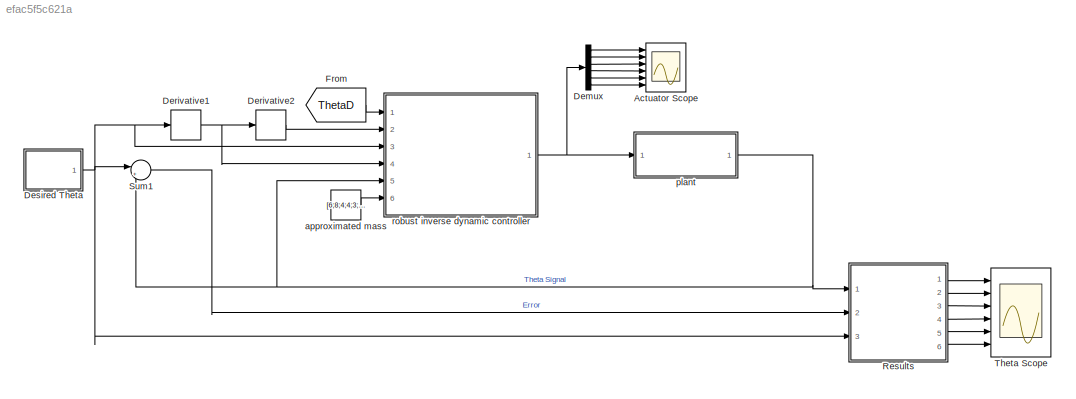
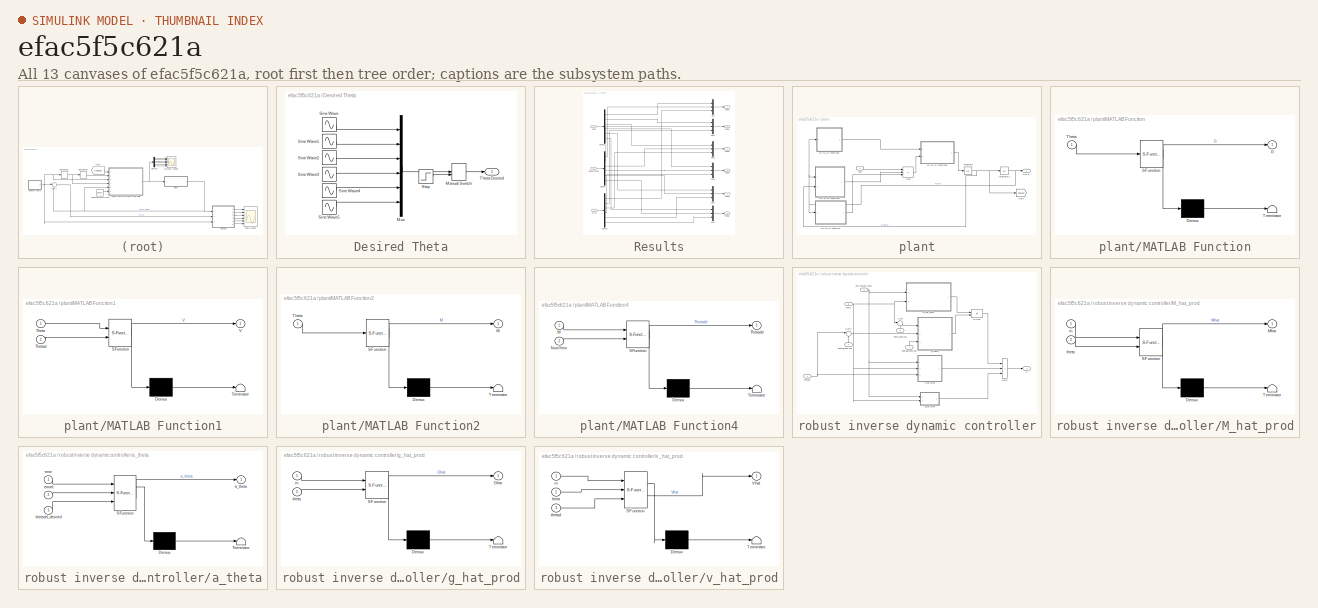
[diagram: thumbnail index - all 13 canvases of the model, root first then tree order]
MODEL slx_efac5f5c621a
KIND model
CONFIG AbsTol = auto
CONFIG EnableMultiTasking = off
CONFIG FixedStep = auto
CONFIG MaxStep = auto
CONFIG MinStep = auto
CONFIG RelTol = 1e-3
CONFIG SampleTimeConstraint = Unconstrained
CONFIG SolverName = VariableStepAuto
CONFIG StartTime = 0.0
CONFIG StopTime = 10
BLOCK [Scope] Actuator Scope
  Floating = off
  NumInputPorts = 6
  Ports = [6]
  ScopeSpecificationString = Simulink.scopes.TimeScopeBlockCfg('CurrentConfiguration', extmgr.ConfigurationSet(extmgr.Configuration('Core','General UI',true),extmgr.Configuration('Core','Source UI',true),extmgr.Configuration('Sources','WiredSimulink',true,'DataLoggingVariableName','ScopeData1'),extmgr.Configuration('Visuals','Time Domain',true,'SerializedDisplays',{struct('MinYLimReal','-355767212215.15454','MaxYLimReal','485...<+5018ch>
BLOCK [Demux] Demux
  Outputs = 6
  Ports = [1, 6]
BLOCK [Derivative] Derivative1
BLOCK [Derivative] Derivative2
BLOCK [SubSystem] Desired Theta
  Ports = [0, 1]
  RequestExecContextInheritance = off
  ShowPortLabels = none
BLOCK [ManualSwitch] Desired Theta/Manual Switch
  CurrentSetting = 0
BLOCK [Mux] Desired Theta/Mux
  DisplayOption = bar
  Inputs = 6
  Ports = [6, 1]
BLOCK [Sin] Desired Theta/Sine Wave
  Ports = [0, 1]
  SampleTime = 0
BLOCK [Sin] Desired Theta/Sine Wave1
  Ports = [0, 1]
  SampleTime = 0
BLOCK [Sin] Desired Theta/Sine Wave2
  Ports = [0, 1]
  SampleTime = 0
BLOCK [Sin] Desired Theta/Sine Wave3
  Amplitude = 0.5
  Bias = 0.5
  Ports = [0, 1]
  SampleTime = 0
BLOCK [Sin] Desired Theta/Sine Wave4
  Amplitude = 0.5
  Bias = 0.5
  Frequency = 2
  Ports = [0, 1]
  SampleTime = 0
BLOCK [Sin] Desired Theta/Sine Wave5
  Amplitude = 0.5
  Bias = 0.5
  Frequency = 0.5
  Ports = [0, 1]
  SampleTime = 0
BLOCK [Step] Desired Theta/Step
  After = [pi/2;pi/2;pi/2;pi/2;pi/2;pi/2];
  Before = [0;0;0;0;0;0];
  SampleTime = 0
  Time = 0
BLOCK [Outport] Desired Theta/Theta Desired
  VectorParamsAs1DForOutWhenUnconnected = off
BLOCK [From] From
  GotoTag = ThetaD
  TagVisibility = global
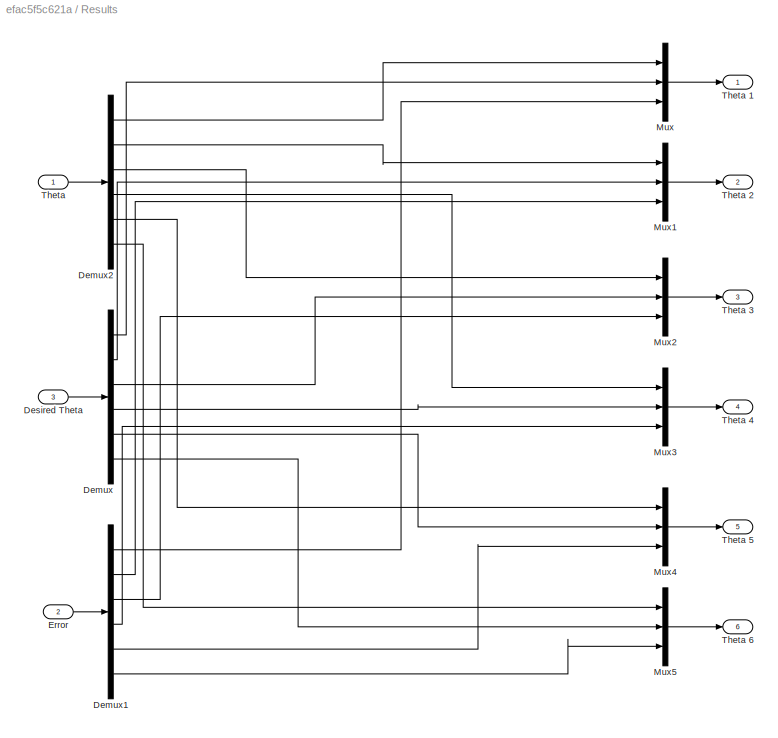
BLOCK [SubSystem] Results
  Ports = [3, 6]
  RequestExecContextInheritance = off
BLOCK [Demux] Results/Demux
  Outputs = 6
  Ports = [1, 6]
BLOCK [Demux] Results/Demux1
  Outputs = 6
  Ports = [1, 6]
BLOCK [Demux] Results/Demux2
  Outputs = 6
  Ports = [1, 6]
BLOCK [Inport] Results/Desired Theta
  Port = 3
BLOCK [Inport] Results/Error
  Port = 2
BLOCK [Mux] Results/Mux
  DisplayOption = bar
  Inputs = 3
  Ports = [3, 1]
BLOCK [Mux] Results/Mux1
  DisplayOption = bar
  Inputs = 3
  Ports = [3, 1]
BLOCK [Mux] Results/Mux2
  DisplayOption = bar
  Inputs = 3
  Ports = [3, 1]
BLOCK [Mux] Results/Mux3
  DisplayOption = bar
  Inputs = 3
  Ports = [3, 1]
BLOCK [Mux] Results/Mux4
  DisplayOption = bar
  Inputs = 3
  Ports = [3, 1]
BLOCK [Mux] Results/Mux5
  DisplayOption = bar
  Inputs = 3
  Ports = [3, 1]
BLOCK [Inport] Results/Theta
BLOCK [Outport] Results/Theta 1
  VectorParamsAs1DForOutWhenUnconnected = off
BLOCK [Outport] Results/Theta 2
  Port = 2
  VectorParamsAs1DForOutWhenUnconnected = off
BLOCK [Outport] Results/Theta 3
  Port = 3
  VectorParamsAs1DForOutWhenUnconnected = off
BLOCK [Outport] Results/Theta 4
  Port = 4
  VectorParamsAs1DForOutWhenUnconnected = off
BLOCK [Outport] Results/Theta 5
  Port = 5
  VectorParamsAs1DForOutWhenUnconnected = off
BLOCK [Outport] Results/Theta 6
  Port = 6
  VectorParamsAs1DForOutWhenUnconnected = off
BLOCK [Sum] Sum1
  Inputs = |+-
  Ports = [2, 1]
BLOCK [Scope] Theta Scope
  Floating = off
  NumInputPorts = 6
  Ports = [6]
  ScopeSpecificationString = Simulink.scopes.TimeScopeBlockCfg('CurrentConfiguration', extmgr.ConfigurationSet(extmgr.Configuration('Core','General UI',true),extmgr.Configuration('Core','Source UI',true),extmgr.Configuration('Sources','WiredSimulink',true),extmgr.Configuration('Visuals','Time Domain',true,'SerializedDisplays',{struct('MinYLimReal','-190.6496','MaxYLimReal','192.22039','YLabelReal','','MinYLimMag',' 0.00000','...<+5182ch>
BLOCK [Constant] approximated mass
  Value = [6;8;4;4;3;3]
BLOCK [SubSystem] plant
  Ports = [1, 1]
  RequestExecContextInheritance = off
BLOCK [Goto] plant/Goto
  GotoTag = ThetaD
  TagVisibility = global
BLOCK [Integrator] plant/Integrator
  InitialCondition = [0;0;0;0;0;0]
  Ports = [1, 1]
BLOCK [Integrator] plant/Integrator1
  InitialCondition = [0;0;0;0;0;0]
  Ports = [1, 1]
BLOCK [SubSystem] plant/MATLAB Function
  ErrorFcn = Stateflow.Translate.translate
  PermitHierarchicalResolution = ExplicitOnly
  Ports = [1, 1]
  RequestExecContextInheritance = off
  SFBlockType = MATLAB Function
  TreatAsAtomicUnit = on
BLOCK [Demux] plant/MATLAB Function/ Demux 
  Outputs = 1
  Ports = [1, 1]
BLOCK [S-Function] plant/MATLAB Function/ SFunction 
  EnableBusSupport = on
  FunctionName = sf_sfun
  PortCounts = [1 2]
  Ports = [1, 2]
  SFcnIsStateOwnerBlock = off
  SFunctionDeploymentMode = off
  Tag = Stateflow S-Function 4
BLOCK [Terminator] plant/MATLAB Function/ Terminator 
BLOCK [Outport] plant/MATLAB Function/G
  VectorParamsAs1DForOutWhenUnconnected = off
BLOCK [Inport] plant/MATLAB Function/Theta
BLOCK [SubSystem] plant/MATLAB Function1
  ErrorFcn = Stateflow.Translate.translate
  PermitHierarchicalResolution = ExplicitOnly
  Ports = [2, 1]
  RequestExecContextInheritance = off
  SFBlockType = MATLAB Function
  TreatAsAtomicUnit = on
BLOCK [Demux] plant/MATLAB Function1/ Demux 
  Outputs = 1
  Ports = [1, 1]
BLOCK [S-Function] plant/MATLAB Function1/ SFunction 
  EnableBusSupport = on
  FunctionName = sf_sfun
  PortCounts = [2 2]
  Ports = [2, 2]
  SFcnIsStateOwnerBlock = off
  SFunctionDeploymentMode = off
  Tag = Stateflow S-Function 1
BLOCK [Terminator] plant/MATLAB Function1/ Terminator 
BLOCK [Inport] plant/MATLAB Function1/Theta
BLOCK [Inport] plant/MATLAB Function1/Thetad
  Port = 2
BLOCK [Outport] plant/MATLAB Function1/V
  VectorParamsAs1DForOutWhenUnconnected = off
BLOCK [SubSystem] plant/MATLAB Function2
  ErrorFcn = Stateflow.Translate.translate
  PermitHierarchicalResolution = ExplicitOnly
  Ports = [1, 1]
  RequestExecContextInheritance = off
  SFBlockType = MATLAB Function
  TreatAsAtomicUnit = on
BLOCK [Demux] plant/MATLAB Function2/ Demux 
  Outputs = 1
  Ports = [1, 1]
BLOCK [S-Function] plant/MATLAB Function2/ SFunction 
  EnableBusSupport = on
  FunctionName = sf_sfun
  PortCounts = [1 2]
  Ports = [1, 2]
  SFcnIsStateOwnerBlock = off
  SFunctionDeploymentMode = off
  Tag = Stateflow S-Function 3
BLOCK [Terminator] plant/MATLAB Function2/ Terminator 
BLOCK [Outport] plant/MATLAB Function2/M
  VectorParamsAs1DForOutWhenUnconnected = off
BLOCK [Inport] plant/MATLAB Function2/Theta
BLOCK [SubSystem] plant/MATLAB Function4
  ErrorFcn = Stateflow.Translate.translate
  PermitHierarchicalResolution = ExplicitOnly
  Ports = [2, 1]
  RequestExecContextInheritance = off
  SFBlockType = MATLAB Function
  TreatAsAtomicUnit = on
BLOCK [Demux] plant/MATLAB Function4/ Demux 
  Outputs = 1
  Ports = [1, 1]
BLOCK [S-Function] plant/MATLAB Function4/ SFunction 
  EnableBusSupport = on
  FunctionName = sf_sfun
  PortCounts = [2 2]
  Ports = [2, 2]
  SFcnIsStateOwnerBlock = off
  SFunctionDeploymentMode = off
  Tag = Stateflow S-Function 2
BLOCK [Terminator] plant/MATLAB Function4/ Terminator 
BLOCK [Inport] plant/MATLAB Function4/M
BLOCK [Inport] plant/MATLAB Function4/NumTerm
  Port = 2
BLOCK [Outport] plant/MATLAB Function4/Thetadd
  VectorParamsAs1DForOutWhenUnconnected = off
BLOCK [Sum] plant/Sum
  IconShape = rectangular
  Inputs = +--
  Ports = [3, 1]
BLOCK [Outport] plant/THETA
BLOCK [Inport] plant/taw
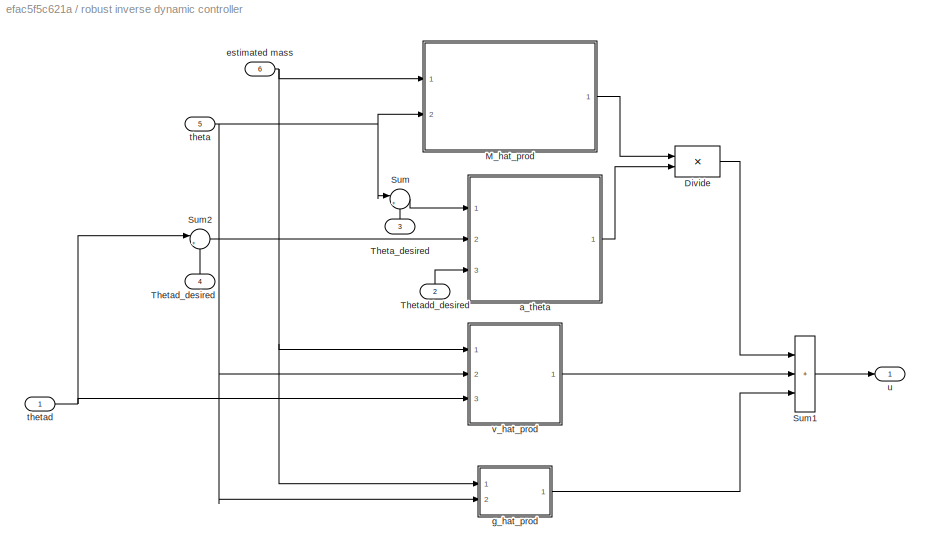
BLOCK [SubSystem] robust inverse dynamic controller
  Ports = [6, 1]
  RequestExecContextInheritance = off
BLOCK [Product] robust inverse dynamic controller/Divide
  Multiplication = Matrix(*)
  Ports = [2, 1]
BLOCK [SubSystem] robust inverse dynamic controller/M_hat_prod
  ErrorFcn = Stateflow.Translate.translate
  PermitHierarchicalResolution = ExplicitOnly
  Ports = [2, 1]
  RequestExecContextInheritance = off
  SFBlockType = MATLAB Function
  TreatAsAtomicUnit = on
BLOCK [Demux] robust inverse dynamic controller/M_hat_prod/ Demux 
  Outputs = 1
  Ports = [1, 1]
BLOCK [S-Function] robust inverse dynamic controller/M_hat_prod/ SFunction 
  EnableBusSupport = on
  FunctionName = sf_sfun
  PortCounts = [2 2]
  Ports = [2, 2]
  SFcnIsStateOwnerBlock = off
  SFunctionDeploymentMode = off
  Tag = Stateflow S-Function 8
BLOCK [Terminator] robust inverse dynamic controller/M_hat_prod/ Terminator 
BLOCK [Outport] robust inverse dynamic controller/M_hat_prod/Mhat
BLOCK [Inport] robust inverse dynamic controller/M_hat_prod/m
BLOCK [Inport] robust inverse dynamic controller/M_hat_prod/theta
  Port = 2
BLOCK [Sum] robust inverse dynamic controller/Sum
  Inputs = |+-
  Ports = [2, 1]
BLOCK [Sum] robust inverse dynamic controller/Sum1
  IconShape = rectangular
  Inputs = +++
  Ports = [3, 1]
BLOCK [Sum] robust inverse dynamic controller/Sum2
  Inputs = |+-
  Ports = [2, 1]
BLOCK [Inport] robust inverse dynamic controller/Theta_desired
  NameLocation = left
  Port = 3
BLOCK [Inport] robust inverse dynamic controller/Thetad_desired
  NameLocation = left
  Port = 4
BLOCK [Inport] robust inverse dynamic controller/Thetadd_desired
  NameLocation = left
  Port = 2
BLOCK [SubSystem] robust inverse dynamic controller/a_theta
  ErrorFcn = Stateflow.Translate.translate
  PermitHierarchicalResolution = ExplicitOnly
  Ports = [3, 1]
  RequestExecContextInheritance = off
  SFBlockType = MATLAB Function
  TreatAsAtomicUnit = on
BLOCK [Demux] robust inverse dynamic controller/a_theta/ Demux 
  Outputs = 1
  Ports = [1, 1]
BLOCK [S-Function] robust inverse dynamic controller/a_theta/ SFunction 
  EnableBusSupport = on
  FunctionName = sf_sfun
  PortCounts = [3 2]
  Ports = [3, 2]
  SFcnIsStateOwnerBlock = off
  SFunctionDeploymentMode = off
  Tag = Stateflow S-Function 53
BLOCK [Terminator] robust inverse dynamic controller/a_theta/ Terminator 
BLOCK [Outport] robust inverse dynamic controller/a_theta/a_theta
BLOCK [Inport] robust inverse dynamic controller/a_theta/error
BLOCK [Inport] robust inverse dynamic controller/a_theta/errord
  Port = 2
BLOCK [Inport] robust inverse dynamic controller/a_theta/thetadd_desired
  Port = 3
BLOCK [Inport] robust inverse dynamic controller/estimated mass
  Port = 6
BLOCK [SubSystem] robust inverse dynamic controller/g_hat_prod
  ErrorFcn = Stateflow.Translate.translate
  PermitHierarchicalResolution = ExplicitOnly
  Ports = [2, 1]
  RequestExecContextInheritance = off
  SFBlockType = MATLAB Function
  TreatAsAtomicUnit = on
BLOCK [Demux] robust inverse dynamic controller/g_hat_prod/ Demux 
  Outputs = 1
  Ports = [1, 1]
BLOCK [S-Function] robust inverse dynamic controller/g_hat_prod/ SFunction 
  EnableBusSupport = on
  FunctionName = sf_sfun
  PortCounts = [2 2]
  Ports = [2, 2]
  SFcnIsStateOwnerBlock = off
  SFunctionDeploymentMode = off
  Tag = Stateflow S-Function 5
BLOCK [Terminator] robust inverse dynamic controller/g_hat_prod/ Terminator 
BLOCK [Outport] robust inverse dynamic controller/g_hat_prod/Ghat
BLOCK [Inport] robust inverse dynamic controller/g_hat_prod/m
BLOCK [Inport] robust inverse dynamic controller/g_hat_prod/theta
  Port = 2
BLOCK [Inport] robust inverse dynamic controller/theta
  Port = 5
BLOCK [Inport] robust inverse dynamic controller/thetad
BLOCK [Outport] robust inverse dynamic controller/u
BLOCK [SubSystem] robust inverse dynamic controller/v_hat_prod
  ErrorFcn = Stateflow.Translate.translate
  PermitHierarchicalResolution = ExplicitOnly
  Ports = [3, 1]
  RequestExecContextInheritance = off
  SFBlockType = MATLAB Function
  TreatAsAtomicUnit = on
BLOCK [Demux] robust inverse dynamic controller/v_hat_prod/ Demux 
  Outputs = 1
  Ports = [1, 1]
BLOCK [S-Function] robust inverse dynamic controller/v_hat_prod/ SFunction 
  EnableBusSupport = on
  FunctionName = sf_sfun
  PortCounts = [3 2]
  Ports = [3, 2]
  SFcnIsStateOwnerBlock = off
  SFunctionDeploymentMode = off
  Tag = Stateflow S-Function 7
BLOCK [Terminator] robust inverse dynamic controller/v_hat_prod/ Terminator 
BLOCK [Outport] robust inverse dynamic controller/v_hat_prod/Vhat
BLOCK [Inport] robust inverse dynamic controller/v_hat_prod/m
BLOCK [Inport] robust inverse dynamic controller/v_hat_prod/theta
  Port = 2
BLOCK [Inport] robust inverse dynamic controller/v_hat_prod/thetad
  Port = 3
LINE Demux:1 -> Actuator Scope:1
LINE Demux:2 -> Actuator Scope:2
LINE Demux:3 -> Actuator Scope:3
LINE Demux:4 -> Actuator Scope:4
LINE Demux:5 -> Actuator Scope:5
LINE Demux:6 -> Actuator Scope:6
NET Derivative1:1 -> Derivative2:1, robust inverse dynamic controller:4
LINE Derivative2:1 -> robust inverse dynamic controller:2
LINE Desired Theta/Manual Switch:1 -> Desired Theta/Theta Desired:1
LINE Desired Theta/Mux:1 -> Desired Theta/Manual Switch:1
LINE Desired Theta/Sine Wave1:1 -> Desired Theta/Mux:2
LINE Desired Theta/Sine Wave2:1 -> Desired Theta/Mux:3
LINE Desired Theta/Sine Wave3:1 -> Desired Theta/Mux:4
LINE Desired Theta/Sine Wave4:1 -> Desired Theta/Mux:5
LINE Desired Theta/Sine Wave5:1 -> Desired Theta/Mux:6
LINE Desired Theta/Sine Wave:1 -> Desired Theta/Mux:1
LINE Desired Theta/Step:1 -> Desired Theta/Manual Switch:2
NET Desired Theta:1 -> Derivative1:1, Results:3, Sum1:1, robust inverse dynamic controller:3
LINE From:1 -> robust inverse dynamic controller:1
LINE Results/Demux1:1 -> Results/Mux:3
LINE Results/Demux1:2 -> Results/Mux1:3
LINE Results/Demux1:3 -> Results/Mux2:3
LINE Results/Demux1:4 -> Results/Mux3:3
LINE Results/Demux1:5 -> Results/Mux4:3
LINE Results/Demux1:6 -> Results/Mux5:3
LINE Results/Demux2:1 -> Results/Mux:1
LINE Results/Demux2:2 -> Results/Mux1:1
LINE Results/Demux2:3 -> Results/Mux2:1
LINE Results/Demux2:4 -> Results/Mux3:1
LINE Results/Demux2:5 -> Results/Mux4:1
LINE Results/Demux2:6 -> Results/Mux5:1
LINE Results/Demux:1 -> Results/Mux:2
LINE Results/Demux:2 -> Results/Mux1:2
LINE Results/Demux:3 -> Results/Mux2:2
LINE Results/Demux:4 -> Results/Mux3:2
LINE Results/Demux:5 -> Results/Mux4:2
LINE Results/Demux:6 -> Results/Mux5:2
LINE Results/Desired Theta:1 -> Results/Demux:1
LINE Results/Error:1 -> Results/Demux1:1
LINE Results/Mux1:1 -> Results/Theta 2:1
LINE Results/Mux2:1 -> Results/Theta 3:1
LINE Results/Mux3:1 -> Results/Theta 4:1
LINE Results/Mux4:1 -> Results/Theta 5:1
LINE Results/Mux5:1 -> Results/Theta 6:1
LINE Results/Mux:1 -> Results/Theta 1:1
LINE Results/Theta:1 -> Results/Demux2:1
LINE Results:1 -> Theta Scope:1
LINE Results:2 -> Theta Scope:2
LINE Results:3 -> Theta Scope:3
LINE Results:4 -> Theta Scope:4
LINE Results:5 -> Theta Scope:5
LINE Results:6 -> Theta Scope:6
LINE Sum1:1 -> Results:2
LINE approximated mass:1 -> robust inverse dynamic controller:6
NET plant/Integrator1:1 -> plant/MATLAB Function1:1, plant/MATLAB Function2:1, plant/MATLAB Function:1, plant/THETA:1
NET plant/Integrator:1 -> plant/Goto:1, plant/Integrator1:1, plant/MATLAB Function1:2
LINE plant/MATLAB Function1:1 -> plant/Sum:2
LINE plant/MATLAB Function2:1 -> plant/MATLAB Function4:1
LINE plant/MATLAB Function4:1 -> plant/Integrator:1
LINE plant/MATLAB Function:1 -> plant/Sum:3
LINE plant/Sum:1 -> plant/MATLAB Function4:2
LINE plant/taw:1 -> plant/Sum:1
NET plant:1 -> Results:1, Sum1:2, robust inverse dynamic controller:5
LINE robust inverse dynamic controller/Divide:1 -> robust inverse dynamic controller/Sum1:1
LINE robust inverse dynamic controller/M_hat_prod:1 -> robust inverse dynamic controller/Divide:1
LINE robust inverse dynamic controller/Sum1:1 -> robust inverse dynamic controller/u:1
LINE robust inverse dynamic controller/Sum2:1 -> robust inverse dynamic controller/a_theta:2
LINE robust inverse dynamic controller/Sum:1 -> robust inverse dynamic controller/a_theta:1
LINE robust inverse dynamic controller/Theta_desired:1 -> robust inverse dynamic controller/Sum:2
LINE robust inverse dynamic controller/Thetad_desired:1 -> robust inverse dynamic controller/Sum2:2
LINE robust inverse dynamic controller/Thetadd_desired:1 -> robust inverse dynamic controller/a_theta:3
LINE robust inverse dynamic controller/a_theta:1 -> robust inverse dynamic controller/Divide:2
NET robust inverse dynamic controller/estimated mass:1 -> robust inverse dynamic controller/M_hat_prod:1, robust inverse dynamic controller/g_hat_prod:1, robust inverse dynamic controller/v_hat_prod:1
LINE robust inverse dynamic controller/g_hat_prod:1 -> robust inverse dynamic controller/Sum1:3
NET robust inverse dynamic controller/theta:1 -> robust inverse dynamic controller/M_hat_prod:2, robust inverse dynamic controller/Sum:1, robust inverse dynamic controller/g_hat_prod:2, robust inverse dynamic controller/v_hat_prod:2
NET robust inverse dynamic controller/thetad:1 -> robust inverse dynamic controller/Sum2:1, robust inverse dynamic controller/v_hat_prod:3
LINE robust inverse dynamic controller/v_hat_prod:1 -> robust inverse dynamic controller/Sum1:2
NET robust inverse dynamic controller:1 -> Demux:1, plant:1
note: NET lines group one-source signal fan-out (src -> all destinations, sorted); 1:1 wires keep LINE
CHART plant/MATLAB Function1 states=1 transitions=1
  STATE_LABEL 'eML_blk_kernel()'
  STATE_LABEL 'SCRIPT:\nfunction V = NumV(Theta,Thetad)\nt1=Theta(1);\nt2=Theta(2);\nt3=Theta(3);\nt4=Theta(4);\nt5=Theta(5);\nt6=Theta(6);\ntd1=Thetad(1);\ntd2=Thetad(2);\ntd3=Thetad(3);\ntd4=Thetad(4);\ntd5=Thetad(5);\ntd6=Thetad(6);\n\nL1=0.1025;\nL2=0.408;\nL3=0.376;\nL4=0.1025; \nL5=0.1025;\n\nV=[td2*(td1*(25109.9375*sin(2.0*t2 + 2.0*t3 + 2.0*t4) + 1339251.84*sin(2.0*t2 + t3) + 184221.2*sin(2.0*t2 + 2.0*t3 + t4) + 1047890.82668...<+3608ch>'
CHART plant/MATLAB Function4 states=1 transitions=1
  STATE_LABEL 'eML_blk_kernel()'
  STATE_LABEL 'SCRIPT:\nfunction Thetadd = Response(M,NumTerm)\nThetadd=M\\NumTerm;\n'
CHART plant/MATLAB Function2 states=1 transitions=1
  STATE_LABEL 'eML_blk_kernel()'
  STATE_LABEL 'SCRIPT:\nfunction M = NumM(Theta)\nt1=Theta(1);\nt2=Theta(2);\nt3=Theta(3);\nt4=Theta(4);\nt5=Theta(5);\nt6=Theta(6);\n\nL1=0.1025;\nL2=0.408;\nL3=0.376;\nL4=0.1025; \nL5=0.1025;\n\n\nM=zeros(6);\nM(1)=(999498*cos(t3 + t4))/5 - (9799*L4)/40 - (33481296*cos(2*t2 + t3))/25 -...\n    (30203396714246934648101547*cos(2*t2))/28823037615171174400 - (401759*cos(2*t2 + 2*t3 + 2*t4))/16 -...\n    (15427656*cos(2*t2 + 2*t3))/2...<+3608ch>'
CHART plant/MATLAB Function states=1 transitions=1
  STATE_LABEL 'eML_blk_kernel()'
  STATE_LABEL 'SCRIPT:\nfunction G = NumG(Theta)\nt1=Theta(1);\nt2=Theta(2);\nt3=Theta(3);\nt4=Theta(4);\nt5=Theta(5);\nt6=Theta(6);\n\nL1=0.1025;\nL2=0.408;\nL3=0.376;\nL4=0.1025; \nL5=0.1025;\n\nG=[0\n   5.8614750000000004348521542851813*L3*sin(t2 + t3 + t4 + t5) - 32201.128800000001308035280089825*sin(t2 + t3) - 50391.223200000000709678715793416*sin(t2) - 4806.4095000000003565787665138487*sin(t2 + t3 + t4) - 37.1308500000000...<+803ch>'
CHART robust inverse dynamic controller/g_hat_prod states=1 transitions=1
  STATE_LABEL 'eML_blk_kernel()'
  STATE_LABEL 'SCRIPT:\nfunction Ghat = Find_G(m,theta)\n\nm1 = m(1);\nm2 = m(2);\nm3 = m(3);\nm4 = m(4);\nm5 = m(5);\nm6 = m(6);\n\nt1 = theta(1);\nt2 = theta(2);\nt3 = theta(3);\nt4 = theta(4);\nt5 = theta(5);\nt6 = theta(6);\n\nL1=0.1025;\nL2=0.408;\nL3=0.376;\nL4=0.1025; \nL5=0.1025;\n\nGhat = [0; 9.81*L4*m5*sin(t2 + t3 + t4) - 3688.56*m5*sin(t2 + t3) - 3688.56*m6*sin(t2 + t3) - 4002.48*m3*sin(t2) - 4002.48*m4*sin(t2) - 4002.48*m5...<+710ch>'
CHART robust inverse dynamic controller/v_hat_prod states=1 transitions=1
  STATE_LABEL 'eML_blk_kernel()'
  STATE_LABEL 'SCRIPT:\nfunction Vhat = Find_V(m,theta,thetad)\n\nm1 = m(1);\nm2 = m(2);\nm3 = m(3);\nm4 = m(4);\nm5 = m(5);\nm6 = m(6);\n\nt1=theta(1);\nt2=theta(2);\nt3=theta(3);\nt4=theta(4);\nt5=theta(5);\nt6=theta(6);\n\ntd1=thetad(1);\ntd2=thetad(2);\ntd3=thetad(3);\ntd4=thetad(4);\ntd5=thetad(5);\ntd6=thetad(6);\n\nL1=0.1025;\nL2=0.408;\nL3=0.376;\nL4=0.1025; \nL5=0.1025;\n\nVhat = [td2*(td2*(0.1046752610416666598360663220646*cos(t1)*...<+3608ch>'
CHART robust inverse dynamic controller/M_hat_prod states=1 transitions=1
  STATE_LABEL 'eML_blk_kernel()'
  STATE_LABEL 'SCRIPT:\nfunction Mhat = Find_M(m,theta)\n\nm1 = m(1);\nm2 = m(2);\nm3 = m(3);\nm4 = m(4);\nm5 = m(5);\nm6 = m(6);\n\nt1 = theta(1);\nt2 = theta(2);\nt3 = theta(3);\nt4 = theta(4);\nt5 = theta(5);\nt6 = theta(6);\n\nL1=0.1025;\nL2=0.408;\nL3=0.376;\nL4=0.1025; \nL5=0.1025;\n\nMhat =[(78961*m2)/4 + (411889*m3)/4 + (694641*m4)/4 + (1431307*m5)/8 + (1431307*m6)/8 + (61463515545781917*cos(2*t2))/1152921504606846976 - 83232*...<+3608ch>'
CHART robust inverse dynamic controller/a_theta states=1 transitions=1
  STATE_LABEL 'eML_blk_kernel()'
  STATE_LABEL "SCRIPT:\nfunction a_theta  = innerloop(error,errord,thetadd_desired)\n\nK0= diag([2;2;2;5;5;5]);\nK1= diag([0.9;0.9;0.9;0.1;0.1;0.1]);\n\nB=[zeros(6)\n   eye(6)];\nP = 0.05*eye(12) ;\ne=[error\n    errord];\n\n% error of robust control;\n\n\nro = 10;\nlim = B.'*P*e;\nif (norm(lim)>0)\n    delta_a = -ro*((lim)/norm(lim));\nelse\n    delta_a = zeros(6,1);\nend\n\na_theta = K0*error + K1*errord + thetadd_desired + delta_a;...<+6ch>"
CHART  states=0 transitions=0
CHART  states=0 transitions=0
CHART  states=0 transitions=0
CHART  states=0 transitions=0
CHART  states=0 transitions=0
CHART  states=0 transitions=0
CHART  states=0 transitions=0
CHART  states=0 transitions=0
